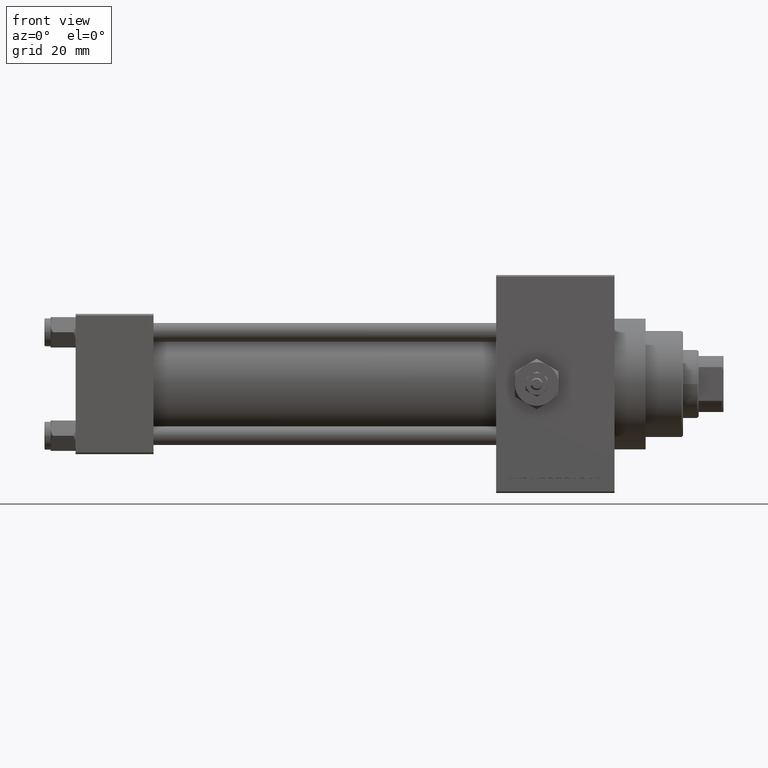
[diagram: clean part render]
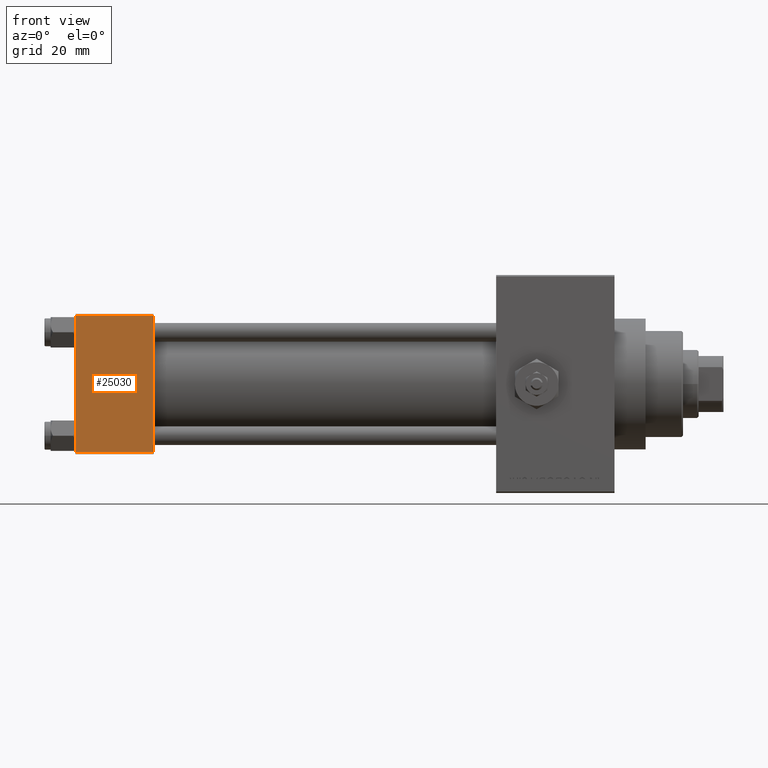
[diagram: same view with one face highlighted and labeled with its STEP entity id]
A machine part, front view. The second image highlights one B-rep face of the part: STEP entity #25030.
In plain terms, the highlighted planar face has unit normal (0, 1, 0).
Its self-contained STEP definition (entity closure, byte-faithful):
#1852 = DIRECTION ( 'NONE',  ( 0.000000000000000000, 0.000000000000000000, -1.000000000000000000 ) ) ;
#3011 = VECTOR ( 'NONE', #15673, 1000.000000000000000 ) ;
#3576 = LINE ( 'NONE', #25821, #25322 ) ;
#4210 = DIRECTION ( 'NONE',  ( 0.000000000000000000, -0.000000000000000000, 1.000000000000000000 ) ) ;
#4368 = ORIENTED_EDGE ( 'NONE', *, *, #41308, .T. ) ;
#6095 = CARTESIAN_POINT ( 'NONE',  ( 0.000000000000000000, -22.50000000000000000, 22.50000000000000000 ) ) ;
#8161 = DIRECTION ( 'NONE',  ( -0.000000000000000000, 1.000000000000000000, 0.000000000000000000 ) ) ;
#8409 = VECTOR ( 'NONE', #28090, 1000.000000000000000 ) ;
#8819 = CARTESIAN_POINT ( 'NONE',  ( 0.000000000000000000, -22.50000000000000000, 22.00000000000000000 ) ) ;
#9047 = CARTESIAN_POINT ( 'NONE',  ( 25.00000000000000000, -22.50000000000000000, -21.99999999999997158 ) ) ;
#10549 = ORIENTED_EDGE ( 'NONE', *, *, #31610, .T. ) ;
#11141 = FACE_OUTER_BOUND ( 'NONE', #14873, .T. ) ;
#11457 = AXIS2_PLACEMENT_3D ( 'NONE', #45160, #8161, #4210 ) ;
#12907 = VERTEX_POINT ( 'NONE', #8819 ) ;
#13024 = LINE ( 'NONE', #6095, #8409 ) ;
#14873 = EDGE_LOOP ( 'NONE', ( #34411, #4368, #42887, #10549 ) ) ;
#15673 = DIRECTION ( 'NONE',  ( -1.000000000000000000, 0.000000000000000000, 0.000000000000000000 ) ) ;
#17767 = EDGE_CURVE ( 'NONE', #18388, #40228, #28541, .T. ) ;
#18388 = VERTEX_POINT ( 'NONE', #26978 ) ;
#19876 = CARTESIAN_POINT ( 'NONE',  ( 25.00000000000000000, -22.50000000000000000, 22.00000000000000000 ) ) ;
#21580 = VERTEX_POINT ( 'NONE', #31743 ) ;
#25030 = ADVANCED_FACE ( 'NONE', ( #11141 ), #38274, .F. ) ;
#25322 = VECTOR ( 'NONE', #41093, 1000.000000000000000 ) ;
#25821 = CARTESIAN_POINT ( 'NONE',  ( 25.00000000000000000, -22.50000000000000000, -21.99999999999998579 ) ) ;
#26884 = VECTOR ( 'NONE', #1852, 1000.000000000000000 ) ;
#26978 = CARTESIAN_POINT ( 'NONE',  ( 25.00000000000000000, -22.50000000000000000, 22.00000000000000000 ) ) ;
#28090 = DIRECTION ( 'NONE',  ( 0.000000000000000000, 0.000000000000000000, -1.000000000000000000 ) ) ;
#28505 = EDGE_CURVE ( 'NONE', #12907, #21580, #13024, .T. ) ;
#28541 = LINE ( 'NONE', #43312, #26884 ) ;
#31610 = EDGE_CURVE ( 'NONE', #18388, #12907, #47730, .T. ) ;
#31743 = CARTESIAN_POINT ( 'NONE',  ( 0.000000000000000000, -22.50000000000000000, -21.99999999999997158 ) ) ;
#34411 = ORIENTED_EDGE ( 'NONE', *, *, #28505, .T. ) ;
#38274 = PLANE ( 'NONE',  #11457 ) ;
#40228 = VERTEX_POINT ( 'NONE', #9047 ) ;
#41093 = DIRECTION ( 'NONE',  ( 1.000000000000000000, 0.000000000000000000, 0.000000000000000000 ) ) ;
#41308 = EDGE_CURVE ( 'NONE', #21580, #40228, #3576, .T. ) ;
#42887 = ORIENTED_EDGE ( 'NONE', *, *, #17767, .F. ) ;
#43312 = CARTESIAN_POINT ( 'NONE',  ( 25.00000000000000000, -22.50000000000000000, 22.50000000000000000 ) ) ;
#45160 = CARTESIAN_POINT ( 'NONE',  ( 25.00000000000000000, -22.50000000000000000, 22.50000000000000000 ) ) ;
#47730 = LINE ( 'NONE', #19876, #3011 ) ;